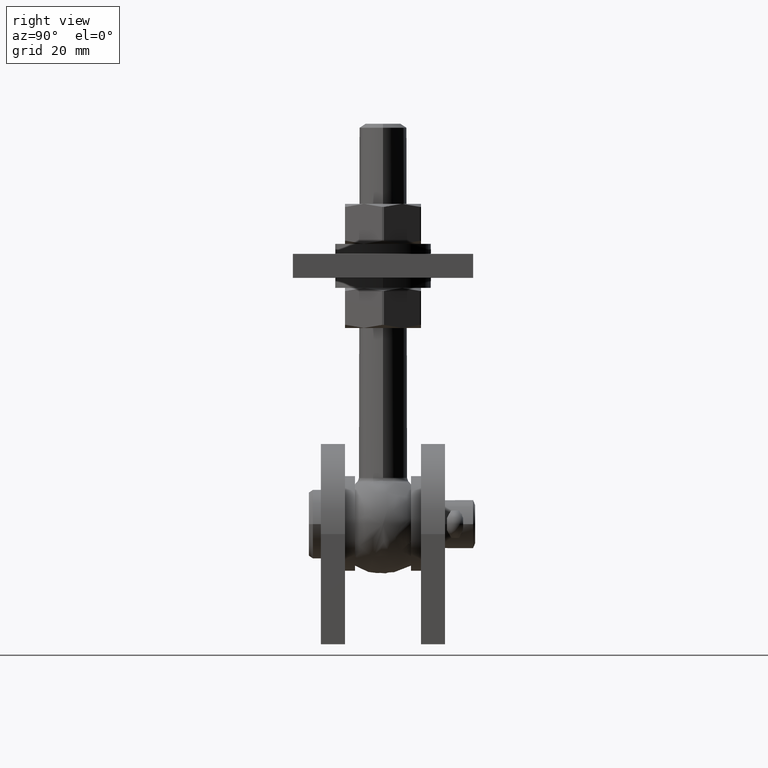
[diagram: clean part render]
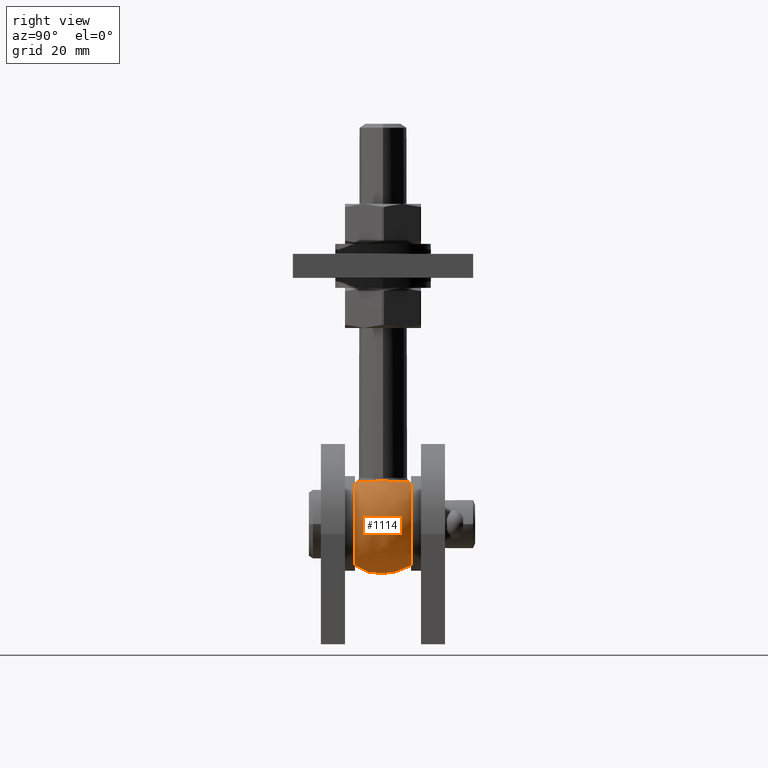
[diagram: same view with one face highlighted and labeled with its STEP entity id]
A machine part, right view. The second image highlights one B-rep face of the part: STEP entity #1114.
In plain terms, the highlighted spherical surface has radius 12.5 mm.
Its self-contained STEP definition (entity closure, byte-faithful):
#813 = CIRCLE ( 'NONE', #4985, 6.481481481481481843 ) ;
#840 = DIRECTION ( 'NONE',  ( 0.000000000000000000, 1.675064772947944041E-16, -1.000000000000000000 ) ) ;
#1114 = ADVANCED_FACE ( 'NONE', ( #4711, #1918, #12723 ), #10176, .T. ) ;
#1205 = DIRECTION ( 'NONE',  ( 0.000000000000000000, 1.836970198721029688E-16, -1.000000000000000000 ) ) ;
#1749 = DIRECTION ( 'NONE',  ( 0.000000000000000000, 0.000000000000000000, -1.000000000000000000 ) ) ;
#1918 = FACE_OUTER_BOUND ( 'NONE', #6653, .T. ) ;
#1972 = EDGE_CURVE ( 'NONE', #6430, #6430, #813, .T. ) ;
#2008 = ORIENTED_EDGE ( 'NONE', *, *, #2925, .F. ) ;
#2085 = CIRCLE ( 'NONE', #8145, 10.35615758860399005 ) ;
#2386 = CARTESIAN_POINT ( 'NONE',  ( 0.000000000000000000, -7.000000000000001776, -10.35615758860399005 ) ) ;
#2925 = EDGE_CURVE ( 'NONE', #13800, #13800, #14783, .T. ) ;
#3048 = EDGE_CURVE ( 'NONE', #16141, #16141, #2085, .T. ) ;
#3856 = CARTESIAN_POINT ( 'NONE',  ( 0.000000000000000000, 0.000000000000000000, 0.000000000000000000 ) ) ;
#4089 = CARTESIAN_POINT ( 'NONE',  ( 0.000000000000000000, 7.000000000000003553, 2.571758278209442056E-15 ) ) ;
#4711 = FACE_BOUND ( 'NONE', #13154, .T. ) ;
#4985 = AXIS2_PLACEMENT_3D ( 'NONE', #9803, #1749, #13872 ) ;
#5382 = CARTESIAN_POINT ( 'NONE',  ( 0.000000000000000000, 7.000000000000005329, -10.35615758860398827 ) ) ;
#6430 = VERTEX_POINT ( 'NONE', #17204 ) ;
#6643 = DIRECTION ( 'NONE',  ( 1.000000000000000000, -0.000000000000000000, 0.000000000000000000 ) ) ;
#6653 = EDGE_LOOP ( 'NONE', ( #10611 ) ) ;
#8145 = AXIS2_PLACEMENT_3D ( 'NONE', #4089, #11030, #13570 ) ;
#9803 = CARTESIAN_POINT ( 'NONE',  ( 0.000000000000000000, 0.000000000000000000, 10.68832998205110663 ) ) ;
#10043 = AXIS2_PLACEMENT_3D ( 'NONE', #10388, #17166, #840 ) ;
#10176 = SPHERICAL_SURFACE ( 'NONE', #15810, 12.50000000000000000 ) ;
#10388 = CARTESIAN_POINT ( 'NONE',  ( 0.000000000000000000, -7.000000000000003553, -6.681278775607901092E-31 ) ) ;
#10611 = ORIENTED_EDGE ( 'NONE', *, *, #3048, .T. ) ;
#11030 = DIRECTION ( 'NONE',  ( -0.000000000000000000, -1.000000000000000000, -1.836970198721029688E-16 ) ) ;
#12723 = FACE_OUTER_BOUND ( 'NONE', #17295, .T. ) ;
#13154 = EDGE_LOOP ( 'NONE', ( #14243 ) ) ;
#13570 = DIRECTION ( 'NONE',  ( 0.000000000000000000, 1.675064772947944041E-16, -1.000000000000000000 ) ) ;
#13800 = VERTEX_POINT ( 'NONE', #2386 ) ;
#13872 = DIRECTION ( 'NONE',  ( -1.000000000000000000, 0.000000000000000000, 0.000000000000000000 ) ) ;
#14243 = ORIENTED_EDGE ( 'NONE', *, *, #1972, .T. ) ;
#14783 = CIRCLE ( 'NONE', #10043, 10.35615758860399005 ) ;
#15810 = AXIS2_PLACEMENT_3D ( 'NONE', #3856, #6643, #1205 ) ;
#16141 = VERTEX_POINT ( 'NONE', #5382 ) ;
#17166 = DIRECTION ( 'NONE',  ( -0.000000000000000000, -1.000000000000000000, -1.836970198721029688E-16 ) ) ;
#17204 = CARTESIAN_POINT ( 'NONE',  ( -6.481481481481481843, 0.000000000000000000, 10.68832998205110663 ) ) ;
#17295 = EDGE_LOOP ( 'NONE', ( #2008 ) ) ;